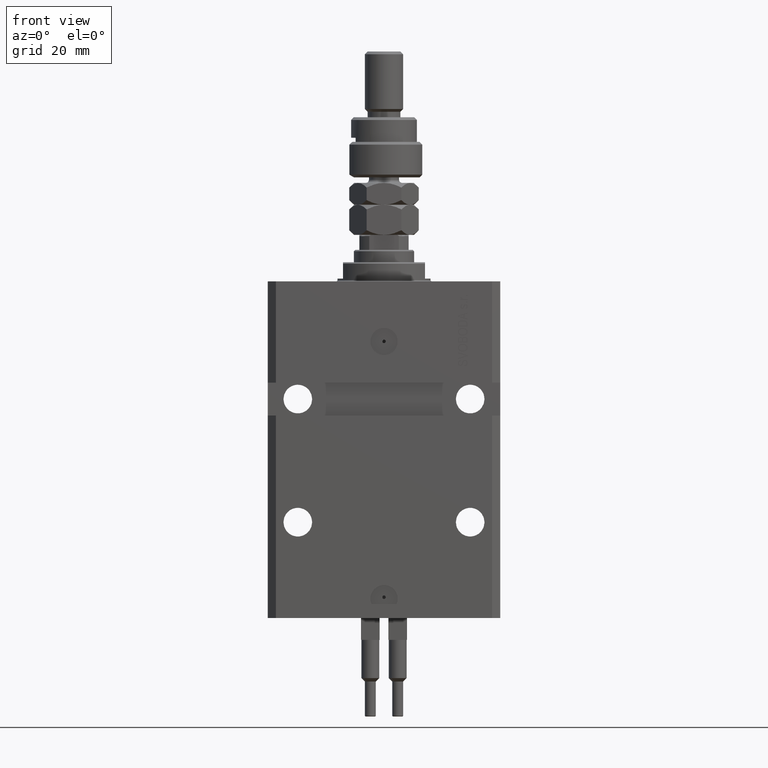
[diagram: clean part render]
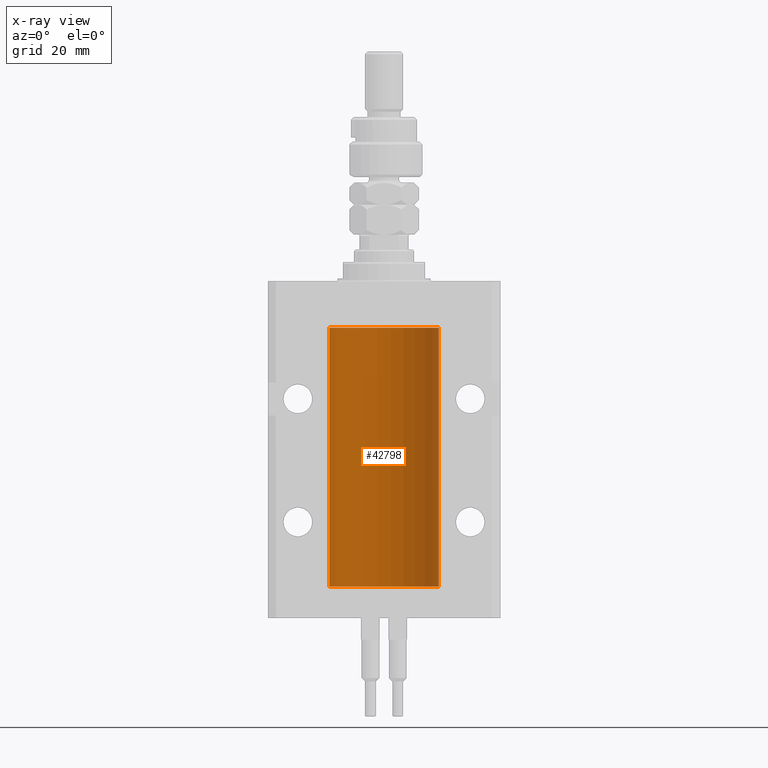
[diagram: x-ray — body ghosted, one internal face saturated and labeled with its STEP entity id]
A machine part, front view, then the same camera in x-ray: the body is ghosted and one INTERNAL B-rep face — a face not visible from any outside direction — is saturated and labeled: STEP entity #42798.
In plain terms, the highlighted cylindrical surface (partial cylindrical patch) has radius 20 mm, axis along (0, 0, 1).
Its self-contained STEP definition (entity closure, byte-faithful):
#1461 = CARTESIAN_POINT ( 'NONE',  ( 19.99253733128256272, 0.5586305947778931191, -23.67476036735258305 ) ) ;
#2457 = VERTEX_POINT ( 'NONE', #41354 ) ;
#2791 = VECTOR ( 'NONE', #31864, 1000.000000000000000 ) ;
#2976 = ORIENTED_EDGE ( 'NONE', *, *, #9231, .T. ) ;
#3224 = VERTEX_POINT ( 'NONE', #42832 ) ;
#3700 = CARTESIAN_POINT ( 'NONE',  ( 19.99766100389833312, 0.3150982863324784944, -109.5459443824127987 ) ) ;
#5096 = CARTESIAN_POINT ( 'NONE',  ( 20.00000000000010303, 3.555666340528858977E-13, -23.37499999999667111 ) ) ;
#5546 = CARTESIAN_POINT ( 'NONE',  ( 20.00000000000000000, 0.000000000000000000, -111.5999999999999943 ) ) ;
#5887 = DIRECTION ( 'NONE',  ( 1.000000000000000000, 0.000000000000000000, 0.000000000000000000 ) ) ;
#5898 = CARTESIAN_POINT ( 'NONE',  ( 0.000000000000000000, 0.000000000000000000, -111.5999999999999943 ) ) ;
#6071 = CARTESIAN_POINT ( 'NONE',  ( 19.99638788807192924, 0.3844440352705381647, -24.49948058986479893 ) ) ;
#7409 = CARTESIAN_POINT ( 'NONE',  ( 20.00000000000000000, 0.000000000000000000, -111.5999999999999943 ) ) ;
#7743 = AXIS2_PLACEMENT_3D ( 'NONE', #45706, #30776, #5887 ) ;
#8657 = CARTESIAN_POINT ( 'NONE',  ( 19.99947351343144319, 0.1636818329565372654, -109.6087285571564536 ) ) ;
#9076 = B_SPLINE_CURVE_WITH_KNOTS ( 'NONE', 3,
 ( #18503, #26377, #14318, #42345, #46771, #22451 ),
 .UNSPECIFIED., .F., .F.,
 ( 4, 2, 4 ),
 ( 0.0009772989342736221503, 0.001465726722058849005, 0.001954154509844075859 ),
 .UNSPECIFIED. ) ;
#9231 = EDGE_CURVE ( 'NONE', #16922, #11395, #14494, .T. ) ;
#9974 = EDGE_CURVE ( 'NONE', #18002, #2457, #30828, .T. ) ;
#10008 = CARTESIAN_POINT ( 'NONE',  ( 19.99023198964933812, 0.6250000000002681189, -24.16311014829328130 ) ) ;
#10045 = VERTEX_POINT ( 'NONE', #5096 ) ;
#10908 = DIRECTION ( 'NONE',  ( -0.000000000000000000, -0.000000000000000000, 1.000000000000000000 ) ) ;
#11395 = VERTEX_POINT ( 'NONE', #42245 ) ;
#12215 = VERTEX_POINT ( 'NONE', #46400 ) ;
#13468 = EDGE_CURVE ( 'NONE', #12215, #3224, #32195, .T. ) ;
#13766 = CYLINDRICAL_SURFACE ( 'NONE', #25341, 20.00000000000000000 ) ;
#13932 = CARTESIAN_POINT ( 'NONE',  ( 19.99999999999999645, 0.08261455565447944904, -24.62499999999999289 ) ) ;
#14318 = CARTESIAN_POINT ( 'NONE',  ( 19.99253733128256627, 0.5586305947779004466, -108.6747603673526044 ) ) ;
#14349 = EDGE_CURVE ( 'NONE', #44363, #2457, #30355, .T. ) ;
#14434 = ORIENTED_EDGE ( 'NONE', *, *, #33664, .T. ) ;
#14455 = CARTESIAN_POINT ( 'NONE',  ( 19.99947351343144675, 0.1636818329565332686, -24.60872855715644292 ) ) ;
#14494 = B_SPLINE_CURVE_WITH_KNOTS ( 'NONE', 3,
 ( #30183, #13932, #14455, #22070, #6071, #39064, #10008, #50068 ),
 .UNSPECIFIED., .F., .F.,
 ( 4, 2, 2, 4 ),
 ( 3.558729249985022577E-18, 0.0002443247335684094949, 0.0004886494671368154120, 0.0009772989342736271377 ),
 .UNSPECIFIED. ) ;
#15449 = EDGE_CURVE ( 'NONE', #37239, #16922, #17366, .T. ) ;
#15742 = CARTESIAN_POINT ( 'NONE',  ( 19.99256353007439202, 0.5574106582031174151, -109.3263903518011517 ) ) ;
#16071 = CARTESIAN_POINT ( 'NONE',  ( 20.00000000000000000, 0.000000000000000000, -17.00000000000000000 ) ) ;
#16922 = VERTEX_POINT ( 'NONE', #41481 ) ;
#17366 = LINE ( 'NONE', #49309, #2791 ) ;
#17691 = DIRECTION ( 'NONE',  ( 1.000000000000000000, 0.000000000000000000, 0.000000000000000000 ) ) ;
#18002 = VERTEX_POINT ( 'NONE', #31320 ) ;
#18503 = CARTESIAN_POINT ( 'NONE',  ( 19.99023198964909298, 0.6250000000081574747, -108.9999999999991047 ) ) ;
#18623 = ORIENTED_EDGE ( 'NONE', *, *, #9974, .F. ) ;
#18874 = EDGE_CURVE ( 'NONE', #3224, #37239, #9076, .T. ) ;
#20753 = VECTOR ( 'NONE', #51132, 1000.000000000000000 ) ;
#20856 = CARTESIAN_POINT ( 'NONE',  ( 19.99023198964909298, 0.6250000000081508134, -23.99999999999910472 ) ) ;
#21230 = B_SPLINE_CURVE_WITH_KNOTS ( 'NONE', 3,
 ( #20856, #45195, #1461, #33686, #48861, #25051 ),
 .UNSPECIFIED., .F., .F.,
 ( 4, 2, 4 ),
 ( 0.0009772989342736271377, 0.001465726722058853775, 0.001954154509844080196 ),
 .UNSPECIFIED. ) ;
#22070 = CARTESIAN_POINT ( 'NONE',  ( 19.99766100389832957, 0.3150982863324739425, -24.54594438241279164 ) ) ;
#22239 = ORIENTED_EDGE ( 'NONE', *, *, #50998, .F. ) ;
#22451 = CARTESIAN_POINT ( 'NONE',  ( 20.00000000000010303, 3.555666352936568165E-13, -108.3749999999966747 ) ) ;
#23826 = ORIENTED_EDGE ( 'NONE', *, *, #18874, .T. ) ;
#25051 = CARTESIAN_POINT ( 'NONE',  ( 20.00000000000010303, 3.555666340528858977E-13, -23.37499999999667111 ) ) ;
#25341 = AXIS2_PLACEMENT_3D ( 'NONE', #5898, #36577, #17691 ) ;
#26377 = CARTESIAN_POINT ( 'NONE',  ( 19.99023198964936299, 0.6249999999995806688, -108.8369638477980885 ) ) ;
#28578 = CARTESIAN_POINT ( 'NONE',  ( 20.00000000000000000, -4.058908006348821872E-15, -109.6250000000000000 ) ) ;
#28610 = VECTOR ( 'NONE', #10908, 1000.000000000000000 ) ;
#28720 = FACE_OUTER_BOUND ( 'NONE', #30170, .T. ) ;
#30170 = EDGE_LOOP ( 'NONE', ( #18623, #22239, #32283, #42588, #23826, #32923, #2976, #48704, #14434, #34096 ) ) ;
#30183 = CARTESIAN_POINT ( 'NONE',  ( 20.00000000000000000, 2.480610556832390753E-15, -24.62500000000000000 ) ) ;
#30355 = CIRCLE ( 'NONE', #7743, 20.00000000000000000 ) ;
#30776 = DIRECTION ( 'NONE',  ( 0.000000000000000000, 0.000000000000000000, 1.000000000000000000 ) ) ;
#30828 = LINE ( 'NONE', #46780, #28610 ) ;
#31320 = CARTESIAN_POINT ( 'NONE',  ( -20.00000000000000000, 2.449293598294706513E-15, -111.5999999999999943 ) ) ;
#31733 = CARTESIAN_POINT ( 'NONE',  ( 19.99023198964934167, 0.6250000000002757794, -109.1631101482932706 ) ) ;
#31864 = DIRECTION ( 'NONE',  ( -0.000000000000000000, -0.000000000000000000, 1.000000000000000000 ) ) ;
#32195 = B_SPLINE_CURVE_WITH_KNOTS ( 'NONE', 3,
 ( #28578, #44535, #8657, #3700, #40611, #15742, #31733, #35666 ),
 .UNSPECIFIED., .F., .F.,
 ( 4, 2, 2, 4 ),
 ( 3.944467879762244826E-18, 0.0002443247335684012008, 0.0004886494671367983900, 0.0009772989342736221503 ),
 .UNSPECIFIED. ) ;
#32255 = AXIS2_PLACEMENT_3D ( 'NONE', #36895, #42113, #34016 ) ;
#32283 = ORIENTED_EDGE ( 'NONE', *, *, #32443, .T. ) ;
#32443 = EDGE_CURVE ( 'NONE', #43149, #12215, #42775, .T. ) ;
#32923 = ORIENTED_EDGE ( 'NONE', *, *, #15449, .T. ) ;
#33163 = CARTESIAN_POINT ( 'NONE',  ( 20.00000000000000000, 0.000000000000000000, -111.5999999999999943 ) ) ;
#33337 = DIRECTION ( 'NONE',  ( -0.000000000000000000, -0.000000000000000000, 1.000000000000000000 ) ) ;
#33664 = EDGE_CURVE ( 'NONE', #10045, #44363, #49019, .T. ) ;
#33686 = CARTESIAN_POINT ( 'NONE',  ( 19.99769474220010679, 0.3253030616682399123, -23.44140633897632142 ) ) ;
#34016 = DIRECTION ( 'NONE',  ( 1.000000000000000000, 0.000000000000000000, 0.000000000000000000 ) ) ;
#34096 = ORIENTED_EDGE ( 'NONE', *, *, #14349, .T. ) ;
#34770 = CIRCLE ( 'NONE', #32255, 20.00000000000000000 ) ;
#35666 = CARTESIAN_POINT ( 'NONE',  ( 19.99023198964909298, 0.6250000000081574747, -108.9999999999991047 ) ) ;
#36577 = DIRECTION ( 'NONE',  ( -0.000000000000000000, -0.000000000000000000, 1.000000000000000000 ) ) ;
#36895 = CARTESIAN_POINT ( 'NONE',  ( 0.000000000000000000, 0.000000000000000000, -111.5999999999999943 ) ) ;
#37239 = VERTEX_POINT ( 'NONE', #49150 ) ;
#39064 = CARTESIAN_POINT ( 'NONE',  ( 19.99256353007439202, 0.5574106582031160828, -24.32639035180114817 ) ) ;
#40611 = CARTESIAN_POINT ( 'NONE',  ( 19.99638788807192924, 0.3844440352705359998, -109.4994805898647883 ) ) ;
#41354 = CARTESIAN_POINT ( 'NONE',  ( -20.00000000000000000, 2.449293598294706513E-15, -17.00000000000000000 ) ) ;
#41481 = CARTESIAN_POINT ( 'NONE',  ( 20.00000000000000000, 2.480610556832390753E-15, -24.62500000000000000 ) ) ;
#42113 = DIRECTION ( 'NONE',  ( 0.000000000000000000, 0.000000000000000000, 1.000000000000000000 ) ) ;
#42245 = CARTESIAN_POINT ( 'NONE',  ( 19.99023198964909298, 0.6250000000081508134, -23.99999999999910472 ) ) ;
#42345 = CARTESIAN_POINT ( 'NONE',  ( 19.99769474220011034, 0.3253030616682413001, -108.4414063389763072 ) ) ;
#42588 = ORIENTED_EDGE ( 'NONE', *, *, #13468, .T. ) ;
#42775 = LINE ( 'NONE', #7409, #20753 ) ;
#42798 = ADVANCED_FACE ( 'NONE', ( #28720 ), #13766, .F. ) ;
#42832 = CARTESIAN_POINT ( 'NONE',  ( 19.99023198964909298, 0.6250000000081574747, -108.9999999999991047 ) ) ;
#42863 = EDGE_CURVE ( 'NONE', #11395, #10045, #21230, .T. ) ;
#43149 = VERTEX_POINT ( 'NONE', #33163 ) ;
#44363 = VERTEX_POINT ( 'NONE', #16071 ) ;
#44535 = CARTESIAN_POINT ( 'NONE',  ( 19.99999999999999645, 0.08261455565447825555, -109.6249999999999574 ) ) ;
#45049 = VECTOR ( 'NONE', #33337, 1000.000000000000000 ) ;
#45195 = CARTESIAN_POINT ( 'NONE',  ( 19.99023198964935588, 0.6249999999995746736, -23.83696384779806721 ) ) ;
#45706 = CARTESIAN_POINT ( 'NONE',  ( 0.000000000000000000, 0.000000000000000000, -17.00000000000000000 ) ) ;
#46400 = CARTESIAN_POINT ( 'NONE',  ( 20.00000000000000000, -4.058908006348821872E-15, -109.6250000000000000 ) ) ;
#46771 = CARTESIAN_POINT ( 'NONE',  ( 19.99999999999999645, 0.1631318418333158327, -108.3750000000001705 ) ) ;
#46780 = CARTESIAN_POINT ( 'NONE',  ( -20.00000000000000000, 2.449293598294706513E-15, -111.5999999999999943 ) ) ;
#48704 = ORIENTED_EDGE ( 'NONE', *, *, #42863, .T. ) ;
#48861 = CARTESIAN_POINT ( 'NONE',  ( 19.99999999999999645, 0.1631318418333146114, -23.37500000000016698 ) ) ;
#49019 = LINE ( 'NONE', #5546, #45049 ) ;
#49150 = CARTESIAN_POINT ( 'NONE',  ( 20.00000000000010303, 3.555666352936568165E-13, -108.3749999999966747 ) ) ;
#49309 = CARTESIAN_POINT ( 'NONE',  ( 20.00000000000000000, 0.000000000000000000, -111.5999999999999943 ) ) ;
#50068 = CARTESIAN_POINT ( 'NONE',  ( 19.99023198964909298, 0.6250000000081508134, -23.99999999999910472 ) ) ;
#50998 = EDGE_CURVE ( 'NONE', #43149, #18002, #34770, .T. ) ;
#51132 = DIRECTION ( 'NONE',  ( -0.000000000000000000, -0.000000000000000000, 1.000000000000000000 ) ) ;